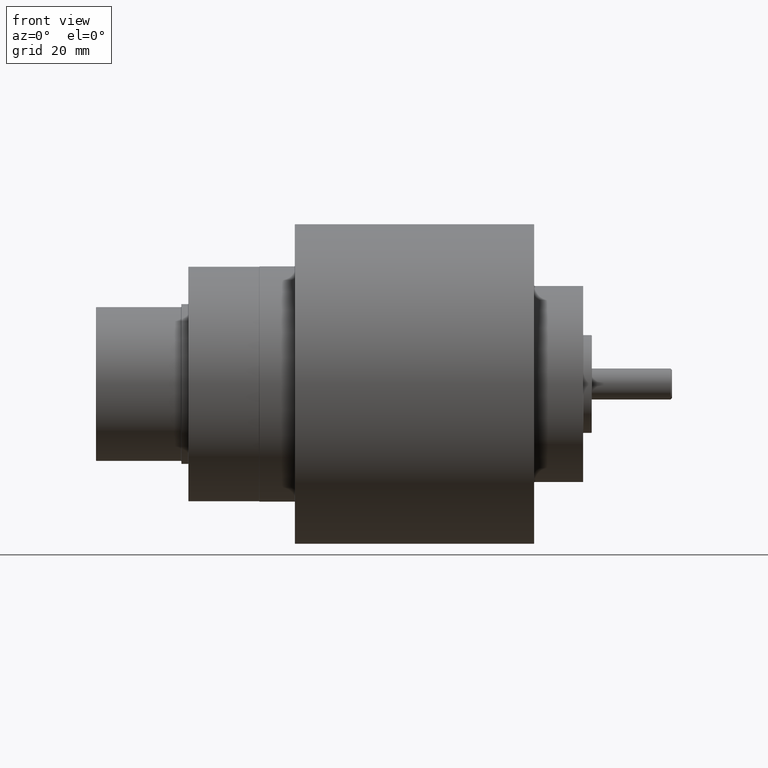
[diagram: clean part render]
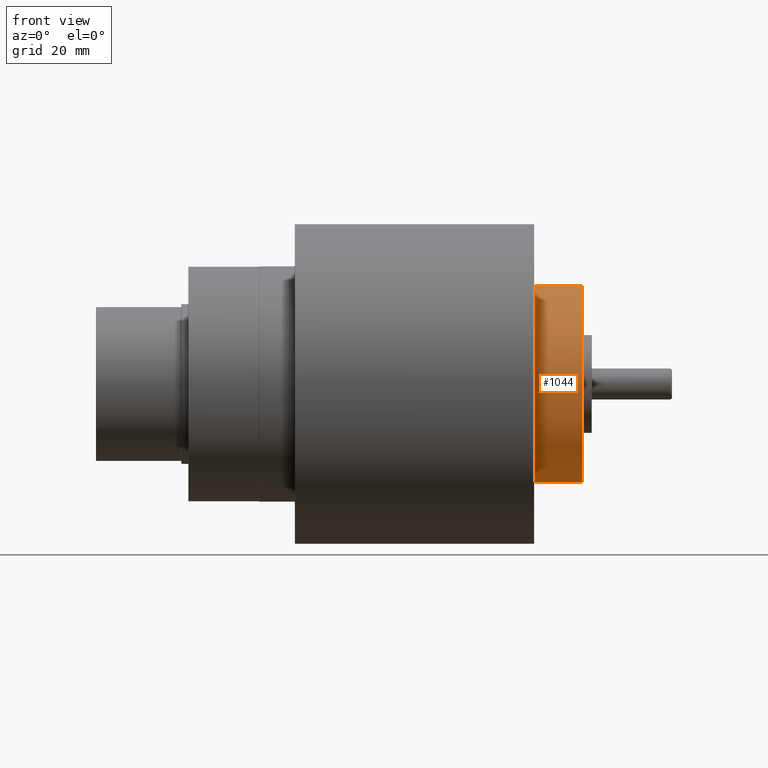
[diagram: same view with one face highlighted and labeled with its STEP entity id]
A machine part, front view. The second image highlights one B-rep face of the part: STEP entity #1044.
In plain terms, the highlighted cylindrical surface (partial cylindrical patch) has radius 35.052 mm, axis along (-1, -0, -0).
Its self-contained STEP definition (entity closure, byte-faithful):
#24 = AXIS2_PLACEMENT_3D ( 'NONE', #459, #476, #477 ) ;
#43 = EDGE_CURVE ( 'NONE', #302, #301, #1254, .T. ) ;
#100 = CARTESIAN_POINT ( 'NONE',  ( 10.76322943214974100, 0.0000000000000000000, 1.379999999999999700 ) ) ;
#138 = DIRECTION ( 'NONE',  ( -1.000000000000000000, -0.0000000000000000000, -0.0000000000000000000 ) ) ;
#139 = CARTESIAN_POINT ( 'NONE',  ( 10.76322943214974100, 1.690012582823347100E-016, -1.379999999999999700 ) ) ;
#151 = DIRECTION ( 'NONE',  ( -1.000000000000000000, -0.0000000000000000000, -0.0000000000000000000 ) ) ;
#173 = EDGE_CURVE ( 'NONE', #301, #297, #1286, .T. ) ;
#181 = EDGE_CURVE ( 'NONE', #302, #298, #1302, .T. ) ;
#297 = VERTEX_POINT ( 'NONE', #1602 ) ;
#298 = VERTEX_POINT ( 'NONE', #1603 ) ;
#301 = VERTEX_POINT ( 'NONE', #1606 ) ;
#302 = VERTEX_POINT ( 'NONE', #1607 ) ;
#459 = CARTESIAN_POINT ( 'NONE',  ( 6.854999999999999500, 0.0000000000000000000, 0.0000000000000000000 ) ) ;
#476 = DIRECTION ( 'NONE',  ( -1.000000000000000000, -0.0000000000000000000, -0.0000000000000000000 ) ) ;
#477 = DIRECTION ( 'NONE',  ( 0.0000000000000000000, 0.0000000000000000000, -1.000000000000000000 ) ) ;
#593 = EDGE_CURVE ( 'NONE', #297, #298, #2264, .T. ) ;
#746 = EDGE_LOOP ( 'NONE', ( #964, #965, #966, #967 ) ) ;
#964 = ORIENTED_EDGE ( 'NONE', *, *, #181, .F. ) ;
#965 = ORIENTED_EDGE ( 'NONE', *, *, #43, .T. ) ;
#966 = ORIENTED_EDGE ( 'NONE', *, *, #173, .T. ) ;
#967 = ORIENTED_EDGE ( 'NONE', *, *, #593, .T. ) ;
#1044 = ADVANCED_FACE ( 'NONE', ( #2430 ), #2438, .T. ) ;
#1254 = CIRCLE ( 'NONE', #24, 1.379999999999999700 ) ;
#1286 = LINE ( 'NONE', #100, #1288 ) ;
#1288 = VECTOR ( 'NONE', #151, 39.37007874015748100 ) ;
#1302 = LINE ( 'NONE', #139, #1303 ) ;
#1303 = VECTOR ( 'NONE', #138, 39.37007874015748100 ) ;
#1458 = AXIS2_PLACEMENT_3D ( 'NONE', #1927, #1928, #1929 ) ;
#1530 = AXIS2_PLACEMENT_3D ( 'NONE', #2185, #2188, #2187 ) ;
#1602 = CARTESIAN_POINT ( 'NONE',  ( 6.174999999999999800, 0.0000000000000000000, 1.379999999999999700 ) ) ;
#1603 = CARTESIAN_POINT ( 'NONE',  ( 6.174999999999999800, 1.690012582823347100E-016, -1.379999999999999700 ) ) ;
#1606 = CARTESIAN_POINT ( 'NONE',  ( 6.854999999999999500, 0.0000000000000000000, 1.379999999999999700 ) ) ;
#1607 = CARTESIAN_POINT ( 'NONE',  ( 6.854999999999999500, 1.690012582823347100E-016, -1.379999999999999700 ) ) ;
#1927 = CARTESIAN_POINT ( 'NONE',  ( 6.174999999999999800, 0.0000000000000000000, 0.0000000000000000000 ) ) ;
#1928 = DIRECTION ( 'NONE',  ( 1.000000000000000000, 0.0000000000000000000, 0.0000000000000000000 ) ) ;
#1929 = DIRECTION ( 'NONE',  ( 0.0000000000000000000, 0.0000000000000000000, -1.000000000000000000 ) ) ;
#2185 = CARTESIAN_POINT ( 'NONE',  ( 10.76322943214974100, 0.0000000000000000000, 0.0000000000000000000 ) ) ;
#2187 = DIRECTION ( 'NONE',  ( 0.0000000000000000000, 0.0000000000000000000, 1.000000000000000000 ) ) ;
#2188 = DIRECTION ( 'NONE',  ( -1.000000000000000000, -0.0000000000000000000, -0.0000000000000000000 ) ) ;
#2264 = CIRCLE ( 'NONE', #1458, 1.379999999999999700 ) ;
#2430 = FACE_OUTER_BOUND ( 'NONE', #746, .T. ) ;
#2438 = CYLINDRICAL_SURFACE ( 'NONE', #1530, 1.379999999999999700 ) ;